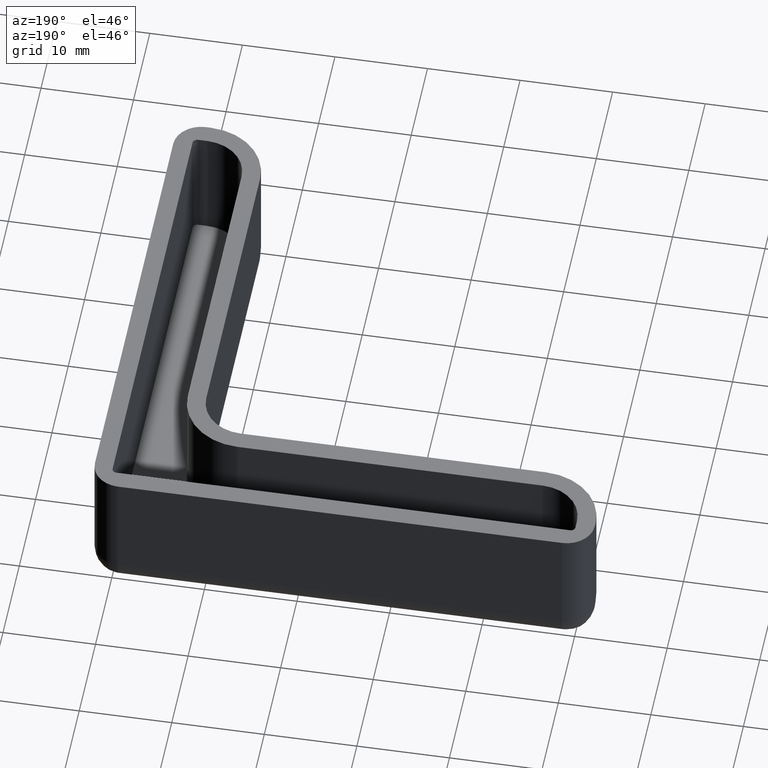
[diagram: clean part render]
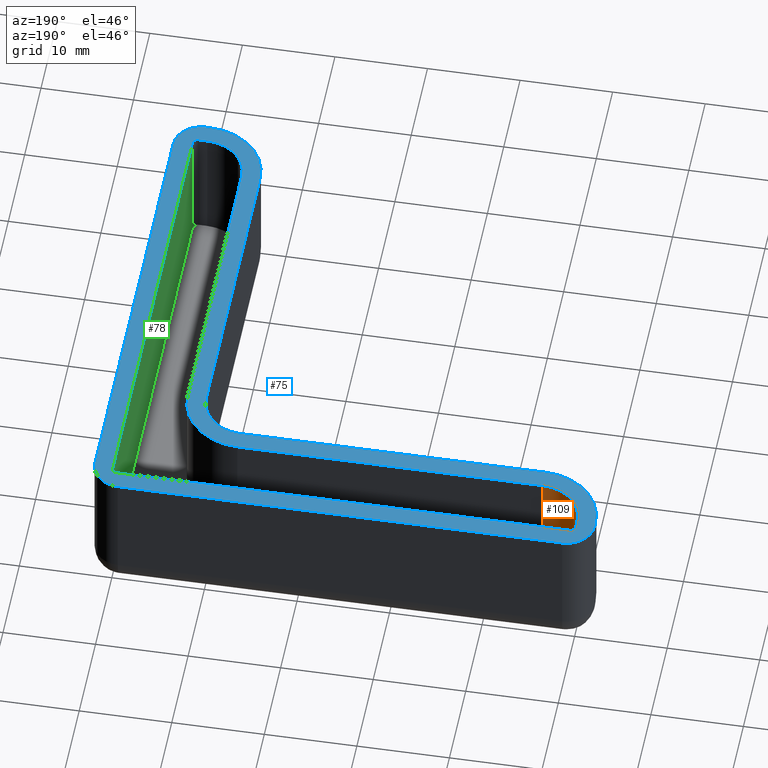
[diagram: same view with three faces highlighted in distinct colors, each labeled with its STEP entity id]
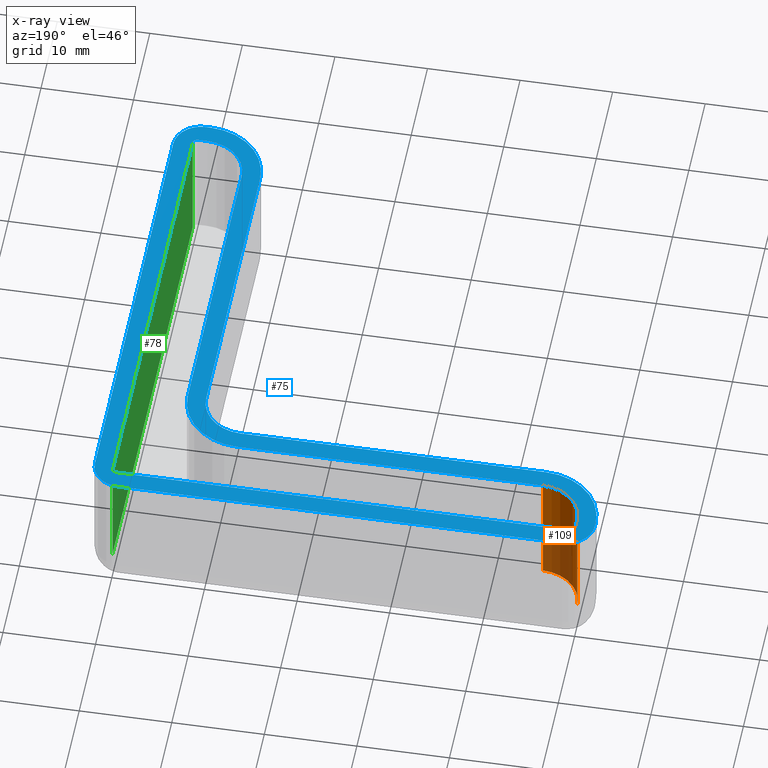
[diagram: x-ray of the same camera — body ghosted, the three highlighted faces saturated]
A machine part, auxiliary view with three faces highlighted in distinct colors.
The next image is the same camera in x-ray (body ghosted, the three faces saturated) — at least one of them is partly hidden behind the body in this view.
Their STEP definitions:

[orange] entity #109 — the highlighted cylindrical surface (partial cylindrical patch) has radius 4.5 mm, axis along (0, 0, 1).
#109 = ADVANCED_FACE( '', ( #184 ), #185, .F. );
#184 = FACE_OUTER_BOUND( '', #263, .T. );
#185 = CYLINDRICAL_SURFACE( '', #264, 4.50000000000000 );
#263 = EDGE_LOOP( '', ( #541, #542, #543, #544 ) );
#264 = AXIS2_PLACEMENT_3D( '', #545, #546, #547 );
#541 = ORIENTED_EDGE( '', *, *, #664, .T. );
#542 = ORIENTED_EDGE( '', *, *, #612, .F. );
#543 = ORIENTED_EDGE( '', *, *, #665, .F. );
#544 = ORIENTED_EDGE( '', *, *, #595, .F. );
#545 = CARTESIAN_POINT( '', ( -45.5000000000000, -1.50000000000000, 30.0000000000000 ) );
#546 = DIRECTION( '', ( 0.000000000000000, 0.000000000000000, 1.00000000000000 ) );
#547 = DIRECTION( '', ( -1.00000000000000, 1.83690953073357E-016, 0.000000000000000 ) );
#595 = EDGE_CURVE( '', #706, #708, #709, .F. );
#612 = EDGE_CURVE( '', #736, #738, #739, .T. );
#664 = EDGE_CURVE( '', #706, #738, #814, .T. );
#665 = EDGE_CURVE( '', #708, #736, #815, .T. );
#706 = VERTEX_POINT( '', #865 );
#708 = VERTEX_POINT( '', #868 );
#709 = CIRCLE( '', #869, 4.50000000000000 );
#736 = VERTEX_POINT( '', #905 );
#738 = VERTEX_POINT( '', #908 );
#739 = CIRCLE( '', #909, 4.50000000000000 );
#814 = LINE( '', #1013, #1014 );
#815 = LINE( '', #1015, #1016 );
#865 = CARTESIAN_POINT( '', ( -45.5000000000000, -6.00000000000001, 0.000000000000000 ) );
#868 = CARTESIAN_POINT( '', ( -50.0000000000000, -1.49999999999998, 0.000000000000000 ) );
#869 = AXIS2_PLACEMENT_3D( '', #1060, #1061, #1062 );
#905 = CARTESIAN_POINT( '', ( -50.0000000000000, -1.49999999999998, -13.0000000000000 ) );
#908 = CARTESIAN_POINT( '', ( -45.5000000000000, -6.00000000000001, -13.0000000000000 ) );
#909 = AXIS2_PLACEMENT_3D( '', #1091, #1092, #1093 );
#1013 = CARTESIAN_POINT( '', ( -45.5000000000000, -6.00000000000001, 30.0000000000000 ) );
#1014 = VECTOR( '', #1189, 1000.00000000000 );
#1015 = CARTESIAN_POINT( '', ( -50.0000000000000, -1.49999999999998, 30.0000000000000 ) );
#1016 = VECTOR( '', #1190, 1000.00000000000 );
#1060 = CARTESIAN_POINT( '', ( -45.5000000000000, -1.50000000000000, 0.000000000000000 ) );
#1061 = DIRECTION( '', ( 0.000000000000000, 0.000000000000000, 1.00000000000000 ) );
#1062 = DIRECTION( '', ( -1.00000000000000, 1.22460635382238E-016, 0.000000000000000 ) );
#1091 = CARTESIAN_POINT( '', ( -45.5000000000000, -1.50000000000000, -13.0000000000000 ) );
#1092 = DIRECTION( '', ( 0.000000000000000, 0.000000000000000, 1.00000000000000 ) );
#1093 = DIRECTION( '', ( -1.00000000000000, 1.83690953073357E-016, 0.000000000000000 ) );
#1189 = DIRECTION( '', ( 0.000000000000000, 0.000000000000000, -1.00000000000000 ) );
#1190 = DIRECTION( '', ( 0.000000000000000, 0.000000000000000, -1.00000000000000 ) );

[blue] entity #75 — the highlighted planar face has unit normal (0, 0, 1).
#75 = ADVANCED_FACE( '', ( #115, #116 ), #117, .T. );
#115 = FACE_OUTER_BOUND( '', #194, .T. );
#116 = FACE_BOUND( '', #195, .T. );
#117 = PLANE( '', #196 );
#194 = EDGE_LOOP( '', ( #273, #274, #275, #276, #277, #278, #279, #280, #281, #282, #283, #284 ) );
#195 = EDGE_LOOP( '', ( #285, #286, #287, #288, #289, #290, #291, #292, #293, #294, #295, #296 ) );
#196 = AXIS2_PLACEMENT_3D( '', #297, #298, #299 );
#273 = ORIENTED_EDGE( '', *, *, #576, .T. );
#274 = ORIENTED_EDGE( '', *, *, #577, .T. );
#275 = ORIENTED_EDGE( '', *, *, #578, .T. );
#276 = ORIENTED_EDGE( '', *, *, #579, .T. );
#277 = ORIENTED_EDGE( '', *, *, #580, .T. );
#278 = ORIENTED_EDGE( '', *, *, #581, .T. );
#279 = ORIENTED_EDGE( '', *, *, #582, .T. );
#280 = ORIENTED_EDGE( '', *, *, #583, .T. );
#281 = ORIENTED_EDGE( '', *, *, #584, .T. );
#282 = ORIENTED_EDGE( '', *, *, #585, .T. );
#283 = ORIENTED_EDGE( '', *, *, #586, .T. );
#284 = ORIENTED_EDGE( '', *, *, #587, .T. );
#285 = ORIENTED_EDGE( '', *, *, #588, .T. );
#286 = ORIENTED_EDGE( '', *, *, #589, .T. );
#287 = ORIENTED_EDGE( '', *, *, #590, .T. );
#288 = ORIENTED_EDGE( '', *, *, #591, .T. );
#289 = ORIENTED_EDGE( '', *, *, #592, .T. );
#290 = ORIENTED_EDGE( '', *, *, #593, .T. );
#291 = ORIENTED_EDGE( '', *, *, #594, .T. );
#292 = ORIENTED_EDGE( '', *, *, #595, .T. );
#293 = ORIENTED_EDGE( '', *, *, #596, .T. );
#294 = ORIENTED_EDGE( '', *, *, #597, .T. );
#295 = ORIENTED_EDGE( '', *, *, #598, .T. );
#296 = ORIENTED_EDGE( '', *, *, #599, .T. );
#297 = CARTESIAN_POINT( '', ( -1.00000000000000, -49.0000000000000, 0.000000000000000 ) );
#298 = DIRECTION( '', ( 0.000000000000000, 0.000000000000000, 1.00000000000000 ) );
#299 = DIRECTION( '', ( 1.00000000000000, -1.83690953073357E-016, 0.000000000000000 ) );
#576 = EDGE_CURVE( '', #669, #670, #671, .T. );
#577 = EDGE_CURVE( '', #670, #672, #673, .T. );
#578 = EDGE_CURVE( '', #672, #674, #675, .T. );
#579 = EDGE_CURVE( '', #674, #676, #677, .T. );
#580 = EDGE_CURVE( '', #676, #678, #679, .T. );
#581 = EDGE_CURVE( '', #678, #680, #681, .T. );
#582 = EDGE_CURVE( '', #680, #682, #683, .T. );
#583 = EDGE_CURVE( '', #682, #684, #685, .T. );
#584 = EDGE_CURVE( '', #684, #686, #687, .T. );
#585 = EDGE_CURVE( '', #686, #688, #689, .T. );
#586 = EDGE_CURVE( '', #688, #690, #691, .T. );
#587 = EDGE_CURVE( '', #690, #669, #692, .T. );
#588 = EDGE_CURVE( '', #693, #694, #695, .T. );
#589 = EDGE_CURVE( '', #694, #696, #697, .F. );
#590 = EDGE_CURVE( '', #696, #698, #699, .T. );
#591 = EDGE_CURVE( '', #698, #700, #701, .F. );
#592 = EDGE_CURVE( '', #700, #702, #703, .T. );
#593 = EDGE_CURVE( '', #702, #704, #705, .T. );
#594 = EDGE_CURVE( '', #704, #706, #707, .T. );
#595 = EDGE_CURVE( '', #706, #708, #709, .F. );
#596 = EDGE_CURVE( '', #708, #710, #711, .T. );
#597 = EDGE_CURVE( '', #710, #712, #713, .F. );
#598 = EDGE_CURVE( '', #712, #714, #715, .T. );
#599 = EDGE_CURVE( '', #714, #693, #716, .F. );
#669 = VERTEX_POINT( '', #819 );
#670 = VERTEX_POINT( '', #820 );
#671 = CIRCLE( '', #821, 3.00000000000000 );
#672 = VERTEX_POINT( '', #822 );
#673 = LINE( '', #823, #824 );
#674 = VERTEX_POINT( '', #825 );
#675 = CIRCLE( '', #826, 3.00000000000000 );
#676 = VERTEX_POINT( '', #827 );
#677 = LINE( '', #828, #829 );
#678 = VERTEX_POINT( '', #830 );
#679 = CIRCLE( '', #831, 3.00000000000000 );
#680 = VERTEX_POINT( '', #832 );
#681 = LINE( '', #833, #834 );
#682 = VERTEX_POINT( '', #835 );
#683 = CIRCLE( '', #836, 6.50000000000000 );
#684 = VERTEX_POINT( '', #837 );
#685 = LINE( '', #838, #839 );
#686 = VERTEX_POINT( '', #840 );
#687 = CIRCLE( '', #841, 4.50000000000000 );
#688 = VERTEX_POINT( '', #842 );
#689 = LINE( '', #843, #844 );
#690 = VERTEX_POINT( '', #845 );
#691 = CIRCLE( '', #846, 6.49999999999999 );
#692 = LINE( '', #847, #848 );
#693 = VERTEX_POINT( '', #849 );
#694 = VERTEX_POINT( '', #850 );
#695 = LINE( '', #851, #852 );
#696 = VERTEX_POINT( '', #853 );
#697 = CIRCLE( '', #854, 0.500000000000000 );
#698 = VERTEX_POINT( '', #855 );
#699 = LINE( '', #856, #857 );
#700 = VERTEX_POINT( '', #858 );
#701 = CIRCLE( '', #859, 4.50000000000000 );
#702 = VERTEX_POINT( '', #860 );
#703 = LINE( '', #861, #862 );
#704 = VERTEX_POINT( '', #863 );
#705 = CIRCLE( '', #864, 6.50000000000000 );
#706 = VERTEX_POINT( '', #865 );
#707 = LINE( '', #866, #867 );
#708 = VERTEX_POINT( '', #868 );
#709 = CIRCLE( '', #869, 4.50000000000000 );
#710 = VERTEX_POINT( '', #870 );
#711 = LINE( '', #871, #872 );
#712 = VERTEX_POINT( '', #873 );
#713 = CIRCLE( '', #874, 0.500000000000000 );
#714 = VERTEX_POINT( '', #875 );
#715 = LINE( '', #876, #877 );
#716 = CIRCLE( '', #878, 0.500000000000000 );
#819 = CARTESIAN_POINT( '', ( -1.00000000000000, -52.0000000000000, 0.000000000000000 ) );
#820 = CARTESIAN_POINT( '', ( 1.99999999999999, -49.0000000000000, 0.000000000000000 ) );
#821 = AXIS2_PLACEMENT_3D( '', #1023, #1024, #1025 );
#822 = CARTESIAN_POINT( '', ( 2.00000000000000, -0.999999999999994, 0.000000000000000 ) );
#823 = CARTESIAN_POINT( '', ( 1.99999999999999, -49.0000000000000, 0.000000000000000 ) );
#824 = VECTOR( '', #1026, 1000.00000000000 );
#825 = CARTESIAN_POINT( '', ( -0.999999999999998, 1.99999999999999, 0.000000000000000 ) );
#826 = AXIS2_PLACEMENT_3D( '', #1027, #1028, #1029 );
#827 = CARTESIAN_POINT( '', ( -49.0000000000000, 2.00000000000001, 0.000000000000000 ) );
#828 = CARTESIAN_POINT( '', ( -1.00000000000000, 2.00000000000000, 0.000000000000000 ) );
#829 = VECTOR( '', #1030, 1000.00000000000 );
#830 = CARTESIAN_POINT( '', ( -52.0000000000000, -0.999999999999995, 0.000000000000000 ) );
#831 = AXIS2_PLACEMENT_3D( '', #1031, #1032, #1033 );
#832 = CARTESIAN_POINT( '', ( -52.0000000000000, -1.49999999999998, 0.000000000000000 ) );
#833 = CARTESIAN_POINT( '', ( -52.0000000000000, -0.999999999999995, 0.000000000000000 ) );
#834 = VECTOR( '', #1034, 1000.00000000000 );
#835 = CARTESIAN_POINT( '', ( -45.5000000000000, -8.00000000000001, 0.000000000000000 ) );
#836 = AXIS2_PLACEMENT_3D( '', #1035, #1036, #1037 );
#837 = CARTESIAN_POINT( '', ( -12.5000000000000, -8.00000000000001, 0.000000000000000 ) );
#838 = CARTESIAN_POINT( '', ( -45.5000000000000, -8.00000000000001, 0.000000000000000 ) );
#839 = VECTOR( '', #1038, 1000.00000000000 );
#840 = CARTESIAN_POINT( '', ( -8.00000000000000, -12.5000000000000, 0.000000000000000 ) );
#841 = AXIS2_PLACEMENT_3D( '', #1039, #1040, #1041 );
#842 = CARTESIAN_POINT( '', ( -8.00000000000000, -45.5000000000000, 0.000000000000000 ) );
#843 = CARTESIAN_POINT( '', ( -7.99999999999999, -12.5000000000000, 0.000000000000000 ) );
#844 = VECTOR( '', #1042, 1000.00000000000 );
#845 = CARTESIAN_POINT( '', ( -1.50000000000001, -52.0000000000000, 0.000000000000000 ) );
#846 = AXIS2_PLACEMENT_3D( '', #1043, #1044, #1045 );
#847 = CARTESIAN_POINT( '', ( -1.50000000000001, -52.0000000000000, 0.000000000000000 ) );
#848 = VECTOR( '', #1046, 1000.00000000000 );
#849 = CARTESIAN_POINT( '', ( -9.18454765366773E-017, -0.499999999999994, 0.000000000000000 ) );
#850 = CARTESIAN_POINT( '', ( -9.09270217713115E-015, -49.5000000000000, 0.000000000000000 ) );
#851 = CARTESIAN_POINT( '', ( -9.03633721668906E-015, -49.0000000000000, 0.000000000000000 ) );
#852 = VECTOR( '', #1047, 1000.00000000000 );
#853 = CARTESIAN_POINT( '', ( -0.500000000000021, -50.0000000000000, 0.000000000000000 ) );
#854 = AXIS2_PLACEMENT_3D( '', #1048, #1049, #1050 );
#855 = CARTESIAN_POINT( '', ( -1.50000000000001, -50.0000000000000, 0.000000000000000 ) );
#856 = CARTESIAN_POINT( '', ( -1.00000000000000, -50.0000000000000, 0.000000000000000 ) );
#857 = VECTOR( '', #1051, 1000.00000000000 );
#858 = CARTESIAN_POINT( '', ( -6.00000000000001, -45.5000000000000, 0.000000000000000 ) );
#859 = AXIS2_PLACEMENT_3D( '', #1052, #1053, #1054 );
#860 = CARTESIAN_POINT( '', ( -6.00000000000001, -12.5000000000000, 0.000000000000000 ) );
#861 = CARTESIAN_POINT( '', ( -6.00000000000001, -49.0000000000000, 0.000000000000000 ) );
#862 = VECTOR( '', #1055, 1000.00000000000 );
#863 = CARTESIAN_POINT( '', ( -12.5000000000000, -6.00000000000000, 0.000000000000000 ) );
#864 = AXIS2_PLACEMENT_3D( '', #1056, #1057, #1058 );
#865 = CARTESIAN_POINT( '', ( -45.5000000000000, -6.00000000000001, 0.000000000000000 ) );
#866 = CARTESIAN_POINT( '', ( -0.999999999999997, -6.00000000000001, 0.000000000000000 ) );
#867 = VECTOR( '', #1059, 1000.00000000000 );
#868 = CARTESIAN_POINT( '', ( -50.0000000000000, -1.49999999999998, 0.000000000000000 ) );
#869 = AXIS2_PLACEMENT_3D( '', #1060, #1061, #1062 );
#870 = CARTESIAN_POINT( '', ( -50.0000000000000, -0.499999999999994, 0.000000000000000 ) );
#871 = CARTESIAN_POINT( '', ( -50.0000000000000, -49.0000000000000, 0.000000000000000 ) );
#872 = VECTOR( '', #1063, 1000.00000000000 );
#873 = CARTESIAN_POINT( '', ( -49.5000000000000, 6.06180145142076E-015, 0.000000000000000 ) );
#874 = AXIS2_PLACEMENT_3D( '', #1064, #1065, #1066 );
#875 = CARTESIAN_POINT( '', ( -0.500000000000000, 6.12303176911189E-017, 0.000000000000000 ) );
#876 = CARTESIAN_POINT( '', ( -0.999999999999996, 1.22460635382237E-016, 0.000000000000000 ) );
#877 = VECTOR( '', #1067, 1000.00000000000 );
#878 = AXIS2_PLACEMENT_3D( '', #1068, #1069, #1070 );
#1023 = CARTESIAN_POINT( '', ( -1.00000000000000, -49.0000000000000, 0.000000000000000 ) );
#1024 = DIRECTION( '', ( 0.000000000000000, 0.000000000000000, 1.00000000000000 ) );
#1025 = DIRECTION( '', ( -1.83690953073357E-016, -1.00000000000000, 0.000000000000000 ) );
#1026 = DIRECTION( '', ( 1.83690953073357E-016, 1.00000000000000, 0.000000000000000 ) );
#1027 = CARTESIAN_POINT( '', ( -0.999999999999998, -1.00000000000000, 0.000000000000000 ) );
#1028 = DIRECTION( '', ( 0.000000000000000, 0.000000000000000, 1.00000000000000 ) );
#1029 = DIRECTION( '', ( 1.00000000000000, -1.83690953073357E-016, 0.000000000000000 ) );
#1030 = DIRECTION( '', ( -1.00000000000000, 1.22460635382238E-016, 0.000000000000000 ) );
#1031 = CARTESIAN_POINT( '', ( -49.0000000000000, -0.999999999999995, 0.000000000000000 ) );
#1032 = DIRECTION( '', ( 0.000000000000000, 0.000000000000000, 1.00000000000000 ) );
#1033 = DIRECTION( '', ( 1.83690953073357E-016, 1.00000000000000, 0.000000000000000 ) );
#1034 = DIRECTION( '', ( -1.91849574421310E-016, -1.00000000000000, 0.000000000000000 ) );
#1035 = CARTESIAN_POINT( '', ( -45.5000000000000, -1.50000000000000, 0.000000000000000 ) );
#1036 = DIRECTION( '', ( 0.000000000000000, 0.000000000000000, 1.00000000000000 ) );
#1037 = DIRECTION( '', ( -1.00000000000000, 1.83690953073357E-016, 0.000000000000000 ) );
#1038 = DIRECTION( '', ( 1.00000000000000, -1.22460635382238E-016, 0.000000000000000 ) );
#1039 = CARTESIAN_POINT( '', ( -12.5000000000000, -12.5000000000000, 0.000000000000000 ) );
#1040 = DIRECTION( '', ( 0.000000000000000, 0.000000000000000, -1.00000000000000 ) );
#1041 = DIRECTION( '', ( -5.87297258471891E-016, 1.00000000000000, 0.000000000000000 ) );
#1042 = DIRECTION( '', ( -1.83175957041426E-016, -1.00000000000000, 0.000000000000000 ) );
#1043 = CARTESIAN_POINT( '', ( -1.50000000000001, -45.5000000000000, 0.000000000000000 ) );
#1044 = DIRECTION( '', ( 0.000000000000000, 0.000000000000000, 1.00000000000000 ) );
#1045 = DIRECTION( '', ( -1.00000000000000, 1.83690953073357E-016, 0.000000000000000 ) );
#1046 = DIRECTION( '', ( 1.00000000000000, -1.22460635382238E-016, 0.000000000000000 ) );
#1047 = DIRECTION( '', ( -1.83690953073357E-016, -1.00000000000000, 0.000000000000000 ) );
#1048 = CARTESIAN_POINT( '', ( -0.500000000000006, -49.5000000000000, 0.000000000000000 ) );
#1049 = DIRECTION( '', ( 0.000000000000000, 0.000000000000000, 1.00000000000000 ) );
#1050 = DIRECTION( '', ( -1.00000000000000, 1.22460635382238E-016, 0.000000000000000 ) );
#1051 = DIRECTION( '', ( -1.00000000000000, 1.22460635382238E-016, 0.000000000000000 ) );
#1052 = CARTESIAN_POINT( '', ( -1.50000000000001, -45.5000000000000, 0.000000000000000 ) );
#1053 = DIRECTION( '', ( 0.000000000000000, 0.000000000000000, 1.00000000000000 ) );
#1054 = DIRECTION( '', ( -1.00000000000000, 1.22460635382238E-016, 0.000000000000000 ) );
#1055 = DIRECTION( '', ( 1.83175957041426E-016, 1.00000000000000, 0.000000000000000 ) );
#1056 = CARTESIAN_POINT( '', ( -12.5000000000000, -12.5000000000000, 0.000000000000000 ) );
#1057 = DIRECTION( '', ( 0.000000000000000, 0.000000000000000, 1.00000000000000 ) );
#1058 = DIRECTION( '', ( -1.00000000000000, 1.22460635382238E-016, 0.000000000000000 ) );
#1059 = DIRECTION( '', ( -1.00000000000000, 1.22460635382238E-016, 0.000000000000000 ) );
#1060 = CARTESIAN_POINT( '', ( -45.5000000000000, -1.50000000000000, 0.000000000000000 ) );
#1061 = DIRECTION( '', ( 0.000000000000000, 0.000000000000000, 1.00000000000000 ) );
#1062 = DIRECTION( '', ( -1.00000000000000, 1.22460635382238E-016, 0.000000000000000 ) );
#1063 = DIRECTION( '', ( 1.91849574421310E-016, 1.00000000000000, 0.000000000000000 ) );
#1064 = CARTESIAN_POINT( '', ( -49.5000000000000, -0.499999999999994, 0.000000000000000 ) );
#1065 = DIRECTION( '', ( 0.000000000000000, 0.000000000000000, 1.00000000000000 ) );
#1066 = DIRECTION( '', ( -1.00000000000000, 1.22460635382238E-016, 0.000000000000000 ) );
#1067 = DIRECTION( '', ( 1.00000000000000, -1.22460635382238E-016, 0.000000000000000 ) );
#1068 = CARTESIAN_POINT( '', ( -0.500000000000000, -0.500000000000000, 0.000000000000000 ) );
#1069 = DIRECTION( '', ( 0.000000000000000, 0.000000000000000, 1.00000000000000 ) );
#1070 = DIRECTION( '', ( -1.00000000000000, 1.22460635382238E-016, 0.000000000000000 ) );

[green] entity #78 — the highlighted planar face has unit normal (-1, 0, 0).
#78 = ADVANCED_FACE( '', ( #122 ), #123, .T. );
#122 = FACE_OUTER_BOUND( '', #201, .T. );
#123 = PLANE( '', #202 );
#201 = EDGE_LOOP( '', ( #314, #315, #316, #317 ) );
#202 = AXIS2_PLACEMENT_3D( '', #318, #319, #320 );
#314 = ORIENTED_EDGE( '', *, *, #606, .T. );
#315 = ORIENTED_EDGE( '', *, *, #607, .F. );
#316 = ORIENTED_EDGE( '', *, *, #603, .F. );
#317 = ORIENTED_EDGE( '', *, *, #588, .F. );
#318 = CARTESIAN_POINT( '', ( -9.09270217713115E-015, -49.5000000000000, 30.0000000000000 ) );
#319 = DIRECTION( '', ( -1.00000000000000, 1.83690953073357E-016, 0.000000000000000 ) );
#320 = DIRECTION( '', ( -1.83690953073357E-016, -1.00000000000000, 0.000000000000000 ) );
#588 = EDGE_CURVE( '', #693, #694, #695, .T. );
#603 = EDGE_CURVE( '', #694, #722, #723, .T. );
#606 = EDGE_CURVE( '', #693, #727, #728, .T. );
#607 = EDGE_CURVE( '', #722, #727, #729, .T. );
#693 = VERTEX_POINT( '', #849 );
#694 = VERTEX_POINT( '', #850 );
#695 = LINE( '', #851, #852 );
#722 = VERTEX_POINT( '', #886 );
#723 = LINE( '', #887, #888 );
#727 = VERTEX_POINT( '', #893 );
#728 = LINE( '', #894, #895 );
#729 = LINE( '', #896, #897 );
#849 = CARTESIAN_POINT( '', ( -9.18454765366773E-017, -0.499999999999994, 0.000000000000000 ) );
#850 = CARTESIAN_POINT( '', ( -9.09270217713115E-015, -49.5000000000000, 0.000000000000000 ) );
#851 = CARTESIAN_POINT( '', ( -9.03633721668906E-015, -49.0000000000000, 0.000000000000000 ) );
#852 = VECTOR( '', #1047, 1000.00000000000 );
#886 = CARTESIAN_POINT( '', ( -9.09270217713115E-015, -49.5000000000000, -13.0000000000000 ) );
#887 = CARTESIAN_POINT( '', ( -9.09270217713115E-015, -49.5000000000000, 30.0000000000000 ) );
#888 = VECTOR( '', #1076, 1000.00000000000 );
#893 = CARTESIAN_POINT( '', ( -9.18454765366773E-017, -0.499999999999994, -13.0000000000000 ) );
#894 = CARTESIAN_POINT( '', ( -9.18454765366773E-017, -0.499999999999994, 30.0000000000000 ) );
#895 = VECTOR( '', #1081, 1000.00000000000 );
#896 = CARTESIAN_POINT( '', ( -9.09270217713115E-015, -49.5000000000000, -13.0000000000000 ) );
#897 = VECTOR( '', #1082, 1000.00000000000 );
#1047 = DIRECTION( '', ( -1.83690953073357E-016, -1.00000000000000, 0.000000000000000 ) );
#1076 = DIRECTION( '', ( 0.000000000000000, 0.000000000000000, -1.00000000000000 ) );
#1081 = DIRECTION( '', ( 0.000000000000000, 0.000000000000000, -1.00000000000000 ) );
#1082 = DIRECTION( '', ( 1.83690953073357E-016, 1.00000000000000, 0.000000000000000 ) );